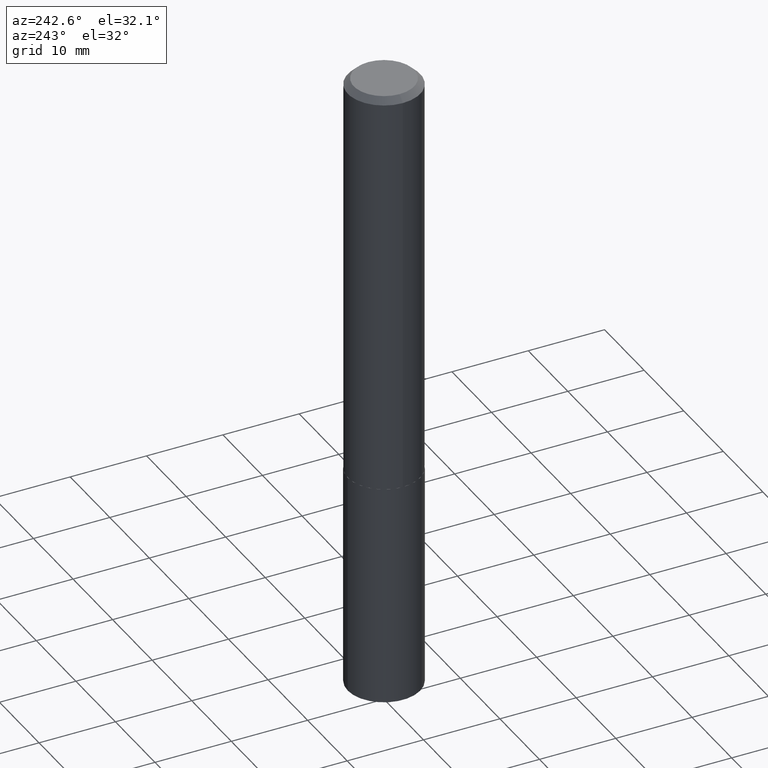
[diagram: clean part render]
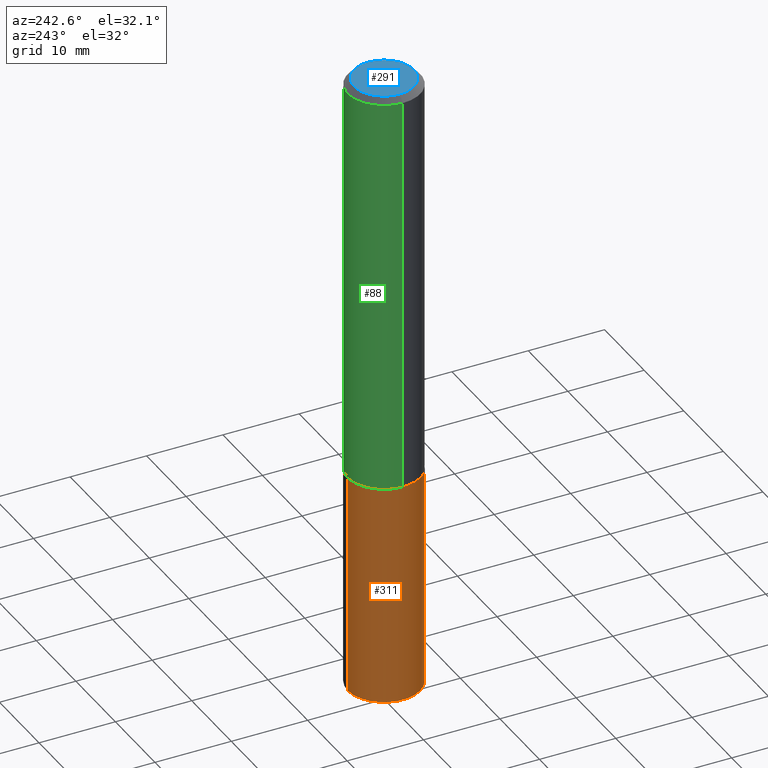
[diagram: same view with three faces highlighted in distinct colors, each labeled with its STEP entity id]
A machine part, auxiliary view with three faces highlighted in distinct colors.
Their STEP definitions:

[orange] entity #311 — the highlighted cylindrical surface (partial cylindrical patch) has radius 4.7498 mm, axis along (-0, 0, 1).
#1 = VERTEX_POINT ( 'NONE', #124 ) ;
#9 = AXIS2_PLACEMENT_3D ( 'NONE', #148, #192, #74 ) ;
#10 = DIRECTION ( 'NONE',  ( -6.982962677686266711E-15, -1.000000000000000000, 2.921762560068730595E-15 ) ) ;
#24 = EDGE_CURVE ( 'NONE', #181, #261, #258, .T. ) ;
#26 = ORIENTED_EDGE ( 'NONE', *, *, #364, .F. ) ;
#29 = DIRECTION ( 'NONE',  ( -2.445529047864753250E-29, 3.491395069329191729E-15, 1.000000000000000000 ) ) ;
#35 = CARTESIAN_POINT ( 'NONE',  ( 1.328714915871438620E-15, 0.1869999999999926721, -2.106300000000000949 ) ) ;
#41 = DIRECTION ( 'NONE',  ( -6.982962677686266711E-15, -1.000000000000000000, 2.921762560068730595E-15 ) ) ;
#56 = ORIENTED_EDGE ( 'NONE', *, *, #24, .T. ) ;
#59 = EDGE_LOOP ( 'NONE', ( #26, #225, #56, #329 ) ) ;
#74 = DIRECTION ( 'NONE',  ( -6.982962677686266711E-15, -1.000000000000000000, 2.921762560068730595E-15 ) ) ;
#104 = CARTESIAN_POINT ( 'NONE',  ( -1.305814020727252721E-15, -0.1870000000000114626, -3.256993501015379877 ) ) ;
#112 = AXIS2_PLACEMENT_3D ( 'NONE', #375, #301, #41 ) ;
#119 = VERTEX_POINT ( 'NONE', #141 ) ;
#124 = CARTESIAN_POINT ( 'NONE',  ( 1.328714915871467217E-15, 0.1869999999999926998, -2.106300000000000949 ) ) ;
#141 = CARTESIAN_POINT ( 'NONE',  ( 1.328714915871467414E-15, 0.1869999999999887030, -3.256993501015380765 ) ) ;
#147 = CARTESIAN_POINT ( 'NONE',  ( 5.150890946467754134E-29, -7.354107144005318601E-15, -2.106300000000000505 ) ) ;
#148 = CARTESIAN_POINT ( 'NONE',  ( 7.964945328390054488E-29, -1.137163275975956234E-14, -3.256993501015380321 ) ) ;
#150 = DIRECTION ( 'NONE',  ( -2.445529047864753250E-29, 3.491395069329191729E-15, 1.000000000000000000 ) ) ;
#167 = CIRCLE ( 'NONE', #237, 0.1869999999999999996 ) ;
#181 = VERTEX_POINT ( 'NONE', #104 ) ;
#192 = DIRECTION ( 'NONE',  ( -2.445529047864752970E-29, 3.491395069329191335E-15, 1.000000000000000000 ) ) ;
#225 = ORIENTED_EDGE ( 'NONE', *, *, #342, .T. ) ;
#231 = FACE_OUTER_BOUND ( 'NONE', #59, .T. ) ;
#237 = AXIS2_PLACEMENT_3D ( 'NONE', #147, #282, #10 ) ;
#251 = LINE ( 'NONE', #35, #273 ) ;
#258 = LINE ( 'NONE', #345, #378 ) ;
#261 = VERTEX_POINT ( 'NONE', #377 ) ;
#267 = CYLINDRICAL_SURFACE ( 'NONE', #112, 0.1869999999999999996 ) ;
#273 = VECTOR ( 'NONE', #150, 39.37007874015748143 ) ;
#282 = DIRECTION ( 'NONE',  ( -2.445529047864752970E-29, 3.491395069329191335E-15, 1.000000000000000000 ) ) ;
#287 = CIRCLE ( 'NONE', #9, 0.1869999999999999996 ) ;
#301 = DIRECTION ( 'NONE',  ( -2.445529047864752970E-29, 3.491395069329191335E-15, 1.000000000000000000 ) ) ;
#311 = ADVANCED_FACE ( 'NONE', ( #231 ), #267, .T. ) ;
#323 = EDGE_CURVE ( 'NONE', #1, #261, #167, .T. ) ;
#329 = ORIENTED_EDGE ( 'NONE', *, *, #323, .F. ) ;
#342 = EDGE_CURVE ( 'NONE', #119, #181, #287, .T. ) ;
#345 = CARTESIAN_POINT ( 'NONE',  ( -1.305814020727280331E-15, -0.1870000000000073548, -2.106300000000000061 ) ) ;
#364 = EDGE_CURVE ( 'NONE', #119, #1, #251, .T. ) ;
#375 = CARTESIAN_POINT ( 'NONE',  ( 5.150890946467754134E-29, -7.354107144005318601E-15, -2.106300000000000505 ) ) ;
#377 = CARTESIAN_POINT ( 'NONE',  ( -1.305814020727280331E-15, -0.1870000000000073548, -2.106300000000000061 ) ) ;
#378 = VECTOR ( 'NONE', #29, 39.37007874015748143 ) ;

[blue] entity #291 — the highlighted planar face has unit normal (0, -0, -1).
#6 = CARTESIAN_POINT ( 'NONE',  ( -5.839929314523303030E-48, 8.337871319499263790E-34, 2.388061258337386140E-19 ) ) ;
#8 = CIRCLE ( 'NONE', #83, 0.1557499999999999996 ) ;
#17 = ORIENTED_EDGE ( 'NONE', *, *, #178, .T. ) ;
#23 = VERTEX_POINT ( 'NONE', #127 ) ;
#39 = CARTESIAN_POINT ( 'NONE',  ( -0.1557499999999999996, 1.142150832969059533E-15, 2.388061258259420163E-19 ) ) ;
#83 = AXIS2_PLACEMENT_3D ( 'NONE', #6, #126, #227 ) ;
#91 = CIRCLE ( 'NONE', #305, 0.1557499999999999996 ) ;
#113 = ORIENTED_EDGE ( 'NONE', *, *, #130, .T. ) ;
#118 = AXIS2_PLACEMENT_3D ( 'NONE', #143, #295, #324 ) ;
#122 = DIRECTION ( 'NONE',  ( -2.445468806185136597E-29, 3.491481338843145583E-15, 1.000000000000000000 ) ) ;
#126 = DIRECTION ( 'NONE',  ( -2.445468806185136597E-29, 3.491481338843145583E-15, 1.000000000000000000 ) ) ;
#127 = CARTESIAN_POINT ( 'NONE',  ( 0.1557499999999999996, -1.230272240287521027E-15, 2.388061258418428791E-19 ) ) ;
#130 = EDGE_CURVE ( 'NONE', #146, #23, #91, .T. ) ;
#143 = CARTESIAN_POINT ( 'NONE',  ( -2.919964657261651515E-48, 4.168935659749631895E-34, 1.194030629168693070E-19 ) ) ;
#146 = VERTEX_POINT ( 'NONE', #39 ) ;
#172 = PLANE ( 'NONE',  #118 ) ;
#178 = EDGE_CURVE ( 'NONE', #23, #146, #8, .T. ) ;
#198 = DIRECTION ( 'NONE',  ( 1.000000000000000000, -6.982962677686265922E-15, 4.876169439353216906E-29 ) ) ;
#209 = FACE_OUTER_BOUND ( 'NONE', #382, .T. ) ;
#227 = DIRECTION ( 'NONE',  ( 1.000000000000000000, -6.982962677686265922E-15, 4.876169439353216906E-29 ) ) ;
#291 = ADVANCED_FACE ( 'NONE', ( #209 ), #172, .F. ) ;
#295 = DIRECTION ( 'NONE',  ( 2.438088387897960049E-29, -3.491481338843145188E-15, -1.000000000000000000 ) ) ;
#305 = AXIS2_PLACEMENT_3D ( 'NONE', #339, #122, #198 ) ;
#324 = DIRECTION ( 'NONE',  ( -1.000000000000000000, 6.982962677686265922E-15, -4.876176775795935793E-29 ) ) ;
#339 = CARTESIAN_POINT ( 'NONE',  ( -5.839929314523303030E-48, 8.337871319499263790E-34, 2.388061258337386140E-19 ) ) ;
#382 = EDGE_LOOP ( 'NONE', ( #113, #17 ) ) ;

[green] entity #88 — the highlighted cylindrical surface (partial cylindrical patch) has radius 4.7498 mm, axis along (-0, 0, 1).
#5 = EDGE_CURVE ( 'NONE', #281, #332, #63, .T. ) ;
#34 = ORIENTED_EDGE ( 'NONE', *, *, #212, .F. ) ;
#63 = LINE ( 'NONE', #120, #138 ) ;
#64 = EDGE_CURVE ( 'NONE', #92, #362, #154, .T. ) ;
#68 = CARTESIAN_POINT ( 'NONE',  ( 0.000000000000000000, 0.000000000000000000, 0.000000000000000000 ) ) ;
#71 = DIRECTION ( 'NONE',  ( -2.445468806185136877E-29, 3.491481338843145188E-15, 1.000000000000000000 ) ) ;
#73 = CIRCLE ( 'NONE', #340, 0.1870000000000002771 ) ;
#81 = DIRECTION ( 'NONE',  ( 1.000000000000000000, -6.982962677686266711E-15, 0.000000000000000000 ) ) ;
#88 = ADVANCED_FACE ( 'NONE', ( #376 ), #163, .T. ) ;
#92 = VERTEX_POINT ( 'NONE', #292 ) ;
#96 = CARTESIAN_POINT ( 'NONE',  ( -0.1870000000000001383, 1.328714915871388330E-15, -9.198408618776680107E-30 ) ) ;
#99 = AXIS2_PLACEMENT_3D ( 'NONE', #68, #223, #202 ) ;
#103 = DIRECTION ( 'NONE',  ( 1.000000000000000000, -6.982962677686265133E-15, 0.000000000000000000 ) ) ;
#111 = CIRCLE ( 'NONE', #369, 0.1870000000000000551 ) ;
#120 = CARTESIAN_POINT ( 'NONE',  ( 0.1870000000000001383, -1.305814020727332790E-15, 9.118450570738406715E-30 ) ) ;
#128 = CARTESIAN_POINT ( 'NONE',  ( -0.1870000000000000551, -2.402020181715984177E-15, -0.03125000000000021511 ) ) ;
#138 = VECTOR ( 'NONE', #71, 39.37007874015748143 ) ;
#154 = LINE ( 'NONE', #96, #266 ) ;
#159 = CARTESIAN_POINT ( 'NONE',  ( 0.1870000000000000551, -1.414922812566181102E-15, -0.03125000000000021511 ) ) ;
#163 = CYLINDRICAL_SURFACE ( 'NONE', #99, 0.1870000000000001383 ) ;
#202 = DIRECTION ( 'NONE',  ( 1.000000000000000000, -6.982962677686266711E-15, 4.876176775795935793E-29 ) ) ;
#203 = CARTESIAN_POINT ( 'NONE',  ( 5.149668212064661332E-29, -7.352361403335897886E-15, -2.105800000000000338 ) ) ;
#212 = EDGE_CURVE ( 'NONE', #332, #362, #111, .T. ) ;
#213 = DIRECTION ( 'NONE',  ( -2.445468806185136597E-29, 3.491481338843145583E-15, 1.000000000000000000 ) ) ;
#220 = EDGE_CURVE ( 'NONE', #281, #92, #73, .T. ) ;
#223 = DIRECTION ( 'NONE',  ( -2.445468806185136597E-29, 3.491481338843145583E-15, 1.000000000000000000 ) ) ;
#230 = DIRECTION ( 'NONE',  ( -2.445468806185136877E-29, 3.491481338843145188E-15, 1.000000000000000000 ) ) ;
#235 = DIRECTION ( 'NONE',  ( -2.445468806185136597E-29, 3.491481338843145583E-15, 1.000000000000000000 ) ) ;
#236 = CARTESIAN_POINT ( 'NONE',  ( 0.1870000000000002771, -8.658175424063231465E-15, -2.105800000000000338 ) ) ;
#248 = ORIENTED_EDGE ( 'NONE', *, *, #64, .T. ) ;
#266 = VECTOR ( 'NONE', #230, 39.37007874015748143 ) ;
#270 = EDGE_LOOP ( 'NONE', ( #384, #248, #34, #279 ) ) ;
#279 = ORIENTED_EDGE ( 'NONE', *, *, #5, .F. ) ;
#281 = VERTEX_POINT ( 'NONE', #236 ) ;
#292 = CARTESIAN_POINT ( 'NONE',  ( -0.1870000000000002771, -6.023646487464508570E-15, -2.105800000000000338 ) ) ;
#294 = CARTESIAN_POINT ( 'NONE',  ( 7.642090019328603538E-31, -1.091087918388490390E-16, -0.03125000000000021511 ) ) ;
#332 = VERTEX_POINT ( 'NONE', #159 ) ;
#340 = AXIS2_PLACEMENT_3D ( 'NONE', #203, #213, #103 ) ;
#362 = VERTEX_POINT ( 'NONE', #128 ) ;
#369 = AXIS2_PLACEMENT_3D ( 'NONE', #294, #235, #81 ) ;
#376 = FACE_OUTER_BOUND ( 'NONE', #270, .T. ) ;
#384 = ORIENTED_EDGE ( 'NONE', *, *, #220, .T. ) ;